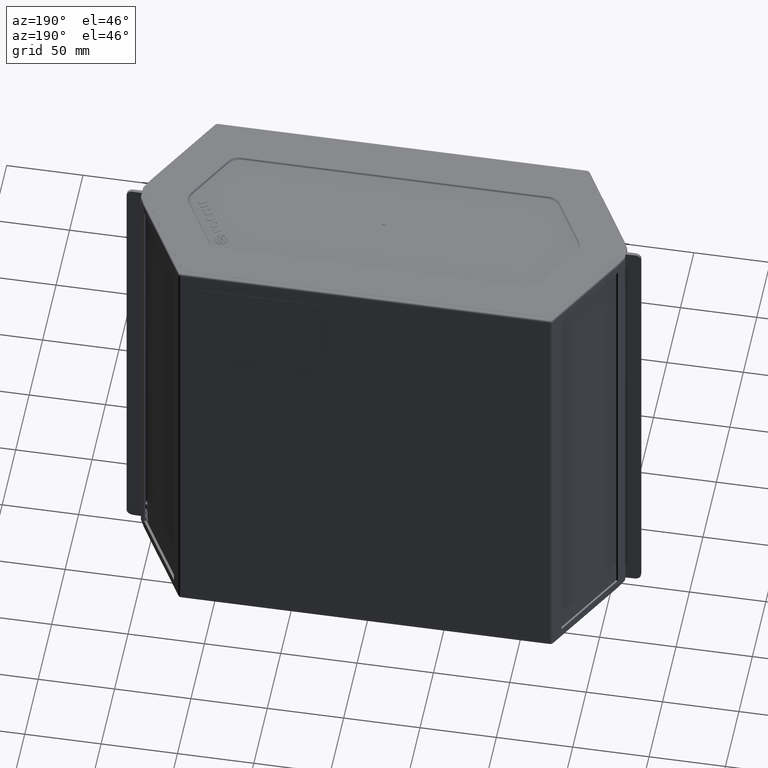
[diagram: clean part render]
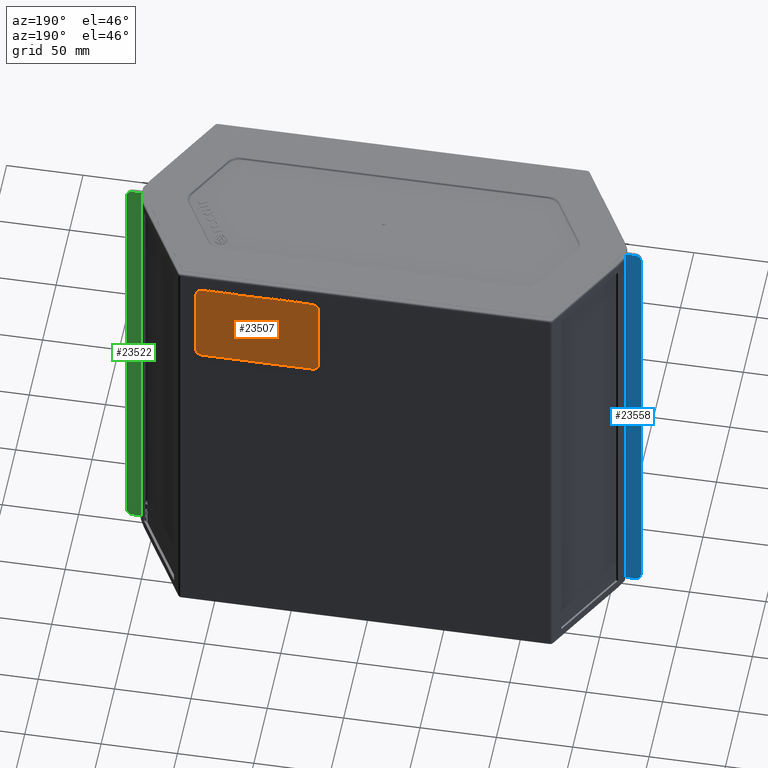
[diagram: same view with three faces highlighted in distinct colors, each labeled with its STEP entity id]
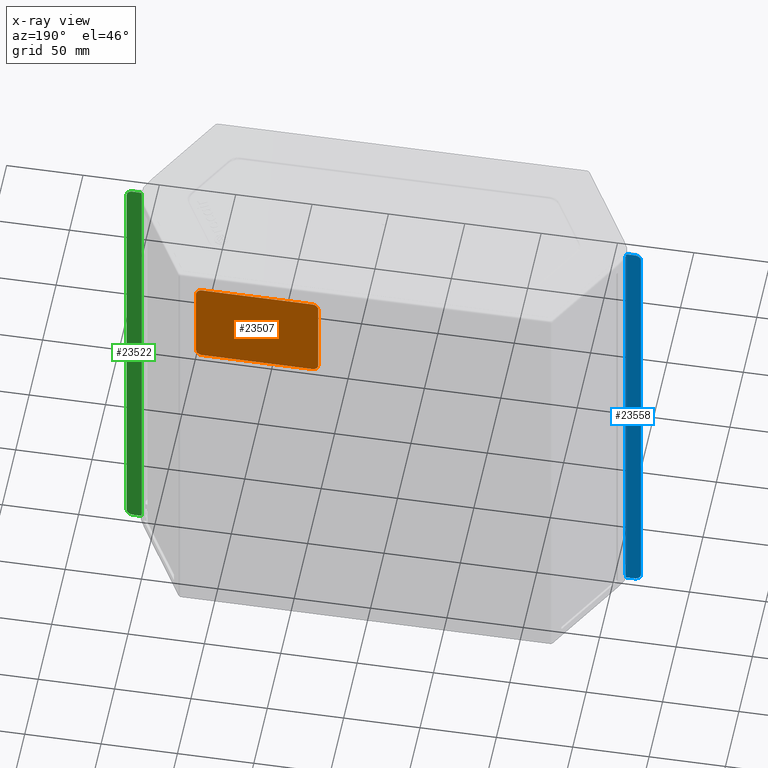
[diagram: x-ray of the same camera — body ghosted, the three highlighted faces saturated]
A machine part, auxiliary view with three faces highlighted in distinct colors.
The next image is the same camera in x-ray (body ghosted, the three faces saturated) — at least one of them is partly hidden behind the body in this view.
Their STEP definitions:

[orange] entity #23507 — the highlighted planar face has unit normal (0, -1, 0).
#1487=PLANE('',#24856);
#1930=FACE_OUTER_BOUND('',#3245,.T.);
#3245=EDGE_LOOP('',(#14829,#14830,#14831,#14832,#14833,#14834,#14835,#14836));
#4616=LINE('',#32215,#6512);
#4620=LINE('',#32227,#6516);
#4624=LINE('',#32239,#6520);
#4628=LINE('',#32249,#6524);
#6512=VECTOR('',#26674,10.);
#6516=VECTOR('',#26686,10.);
#6520=VECTOR('',#26698,10.);
#6524=VECTOR('',#26710,10.);
#8406=CIRCLE('',#24842,3.99999999999999);
#8408=CIRCLE('',#24846,3.99999999999995);
#8410=CIRCLE('',#24850,4.00000000000002);
#8412=CIRCLE('',#24854,3.99999999999995);
#9063=VERTEX_POINT('',#32206);
#9064=VERTEX_POINT('',#32208);
#9066=VERTEX_POINT('',#32214);
#9068=VERTEX_POINT('',#32220);
#9070=VERTEX_POINT('',#32226);
#9072=VERTEX_POINT('',#32232);
#9074=VERTEX_POINT('',#32238);
#9076=VERTEX_POINT('',#32244);
#11311=EDGE_CURVE('',#9064,#9063,#8406,.T.);
#11314=EDGE_CURVE('',#9066,#9064,#4616,.T.);
#11317=EDGE_CURVE('',#9068,#9066,#8408,.T.);
#11320=EDGE_CURVE('',#9070,#9068,#4620,.T.);
#11323=EDGE_CURVE('',#9072,#9070,#8410,.T.);
#11326=EDGE_CURVE('',#9074,#9072,#4624,.T.);
#11329=EDGE_CURVE('',#9076,#9074,#8412,.T.);
#11332=EDGE_CURVE('',#9063,#9076,#4628,.T.);
#14829=ORIENTED_EDGE('',*,*,#11332,.T.);
#14830=ORIENTED_EDGE('',*,*,#11329,.T.);
#14831=ORIENTED_EDGE('',*,*,#11326,.T.);
#14832=ORIENTED_EDGE('',*,*,#11323,.T.);
#14833=ORIENTED_EDGE('',*,*,#11320,.T.);
#14834=ORIENTED_EDGE('',*,*,#11317,.T.);
#14835=ORIENTED_EDGE('',*,*,#11314,.T.);
#14836=ORIENTED_EDGE('',*,*,#11311,.T.);
#23507=ADVANCED_FACE('',(#1930),#1487,.F.);
#24842=AXIS2_PLACEMENT_3D('',#32209,#26668,#26669);
#24846=AXIS2_PLACEMENT_3D('',#32221,#26680,#26681);
#24850=AXIS2_PLACEMENT_3D('',#32233,#26692,#26693);
#24854=AXIS2_PLACEMENT_3D('',#32245,#26704,#26705);
#24856=AXIS2_PLACEMENT_3D('',#32250,#26711,#26712);
#26668=DIRECTION('center_axis',(0.,1.,0.));
#26669=DIRECTION('ref_axis',(0.,0.,-1.));
#26674=DIRECTION('',(1.,0.,0.));
#26680=DIRECTION('center_axis',(0.,1.,0.));
#26681=DIRECTION('ref_axis',(1.,0.,0.));
#26686=DIRECTION('',(-3.41607084500048E-16,0.,1.));
#26692=DIRECTION('center_axis',(0.,1.,0.));
#26693=DIRECTION('ref_axis',(0.,0.,1.));
#26698=DIRECTION('',(-1.,0.,-4.93432455388958E-16));
#26704=DIRECTION('center_axis',(0.,1.,0.));
#26705=DIRECTION('ref_axis',(-1.,0.,0.));
#26710=DIRECTION('',(-6.83214169000096E-16,0.,-1.));
#26711=DIRECTION('center_axis',(0.,-1.,0.));
#26712=DIRECTION('ref_axis',(0.,0.,-1.));
#32206=CARTESIAN_POINT('',(110.894882233485,69.03,283.9));
#32208=CARTESIAN_POINT('',(106.894882233485,69.03,287.9));
#32209=CARTESIAN_POINT('Origin',(106.894882233485,69.03,283.9));
#32214=CARTESIAN_POINT('',(34.8948822334847,69.03,287.9));
#32215=CARTESIAN_POINT('',(106.894882233485,69.03,287.9));
#32220=CARTESIAN_POINT('',(30.8948822334847,69.03,283.9));
#32221=CARTESIAN_POINT('Origin',(34.8948822334847,69.03,283.9));
#32226=CARTESIAN_POINT('',(30.8948822334847,69.03,231.9));
#32227=CARTESIAN_POINT('',(30.8948822334847,69.03,283.9));
#32232=CARTESIAN_POINT('',(34.8948822334847,69.03,227.9));
#32233=CARTESIAN_POINT('Origin',(34.8948822334847,69.03,231.9));
#32238=CARTESIAN_POINT('',(106.894882233485,69.03,227.9));
#32239=CARTESIAN_POINT('',(34.8948822334847,69.03,227.9));
#32244=CARTESIAN_POINT('',(110.894882233485,69.03,231.9));
#32245=CARTESIAN_POINT('Origin',(106.894882233485,69.03,231.9));
#32249=CARTESIAN_POINT('',(110.894882233485,69.03,231.9));
#32250=CARTESIAN_POINT('Origin',(70.8948822334847,69.03,257.9));

[blue] entity #23558 — the highlighted planar face has unit normal (-0.0249, 0.9997, 0).
#1171=ELLIPSE('',#24926,4.0012448212626,4.);
#1173=ELLIPSE('',#24930,4.0012448212626,4.);
#1527=PLANE('',#24929);
#1981=FACE_OUTER_BOUND('',#3297,.T.);
#3297=EDGE_LOOP('',(#15105,#15106,#15107,#15108,#15109,#15110,#15111,#15112,
#15113,#15114));
#4737=LINE('',#32520,#6633);
#4740=LINE('',#32526,#6636);
#4741=LINE('',#32528,#6637);
#4742=LINE('',#32530,#6638);
#4743=LINE('',#32532,#6639);
#4744=LINE('',#32534,#6640);
#4745=LINE('',#32536,#6641);
#4746=LINE('',#32538,#6642);
#6633=VECTOR('',#26965,10.);
#6636=VECTOR('',#26970,10.);
#6637=VECTOR('',#26971,10.);
#6638=VECTOR('',#26972,10.);
#6639=VECTOR('',#26973,10.);
#6640=VECTOR('',#26974,10.);
#6641=VECTOR('',#26975,10.);
#6642=VECTOR('',#26976,10.);
#9161=VERTEX_POINT('',#32510);
#9162=VERTEX_POINT('',#32511);
#9165=VERTEX_POINT('',#32519);
#9167=VERTEX_POINT('',#32525);
#9168=VERTEX_POINT('',#32527);
#9169=VERTEX_POINT('',#32529);
#9170=VERTEX_POINT('',#32531);
#9171=VERTEX_POINT('',#32533);
#9172=VERTEX_POINT('',#32535);
#9173=VERTEX_POINT('',#32537);
#11459=EDGE_CURVE('',#9161,#9162,#1171,.T.);
#11463=EDGE_CURVE('',#9165,#9162,#4737,.T.);
#11466=EDGE_CURVE('',#9161,#9167,#4740,.T.);
#11467=EDGE_CURVE('',#9168,#9167,#4741,.T.);
#11468=EDGE_CURVE('',#9168,#9169,#4742,.T.);
#11469=EDGE_CURVE('',#9169,#9170,#4743,.T.);
#11470=EDGE_CURVE('',#9170,#9171,#4744,.T.);
#11471=EDGE_CURVE('',#9171,#9172,#4745,.T.);
#11472=EDGE_CURVE('',#9173,#9172,#4746,.T.);
#11473=EDGE_CURVE('',#9165,#9173,#1173,.T.);
#15105=ORIENTED_EDGE('',*,*,#11459,.F.);
#15106=ORIENTED_EDGE('',*,*,#11466,.T.);
#15107=ORIENTED_EDGE('',*,*,#11467,.F.);
#15108=ORIENTED_EDGE('',*,*,#11468,.T.);
#15109=ORIENTED_EDGE('',*,*,#11469,.T.);
#15110=ORIENTED_EDGE('',*,*,#11470,.T.);
#15111=ORIENTED_EDGE('',*,*,#11471,.T.);
#15112=ORIENTED_EDGE('',*,*,#11472,.F.);
#15113=ORIENTED_EDGE('',*,*,#11473,.F.);
#15114=ORIENTED_EDGE('',*,*,#11463,.T.);
#23558=ADVANCED_FACE('',(#1981),#1527,.T.);
#24926=AXIS2_PLACEMENT_3D('',#32512,#26957,#26958);
#24929=AXIS2_PLACEMENT_3D('',#32524,#26968,#26969);
#24930=AXIS2_PLACEMENT_3D('',#32539,#26977,#26978);
#26957=DIRECTION('center_axis',(0.0249423376123506,-0.999688891502967,0.));
#26958=DIRECTION('ref_axis',(-0.999688891502967,-0.0249423376123506,0.));
#26965=DIRECTION('',(0.,0.,1.));
#26968=DIRECTION('center_axis',(-0.0249423376123506,0.999688891502967,0.));
#26969=DIRECTION('ref_axis',(0.,0.,-1.));
#26970=DIRECTION('',(0.999688891502967,0.0249423376123488,3.05455539202156E-18));
#26971=DIRECTION('',(0.,0.,1.));
#26972=DIRECTION('',(0.999688891502967,0.0249423376123506,0.));
#26973=DIRECTION('',(0.,0.,-1.));
#26974=DIRECTION('',(-0.999688891502967,-0.0249423376123506,0.));
#26975=DIRECTION('',(0.,0.,-1.));
#26976=DIRECTION('',(0.999688891502967,0.0249423376123488,-3.05455539202156E-18));
#26977=DIRECTION('center_axis',(0.0249423376123506,-0.999688891502967,0.));
#26978=DIRECTION('ref_axis',(-0.999688891502967,-0.0249423376123506,-2.28912260116773E-15));
#32510=CARTESIAN_POINT('',(-164.380450658064,0.999800399201601,299.9));
#32511=CARTESIAN_POINT('',(-168.380450658064,0.900000000000019,295.9));
#32512=CARTESIAN_POINT('Origin',(-164.380450658064,0.99980039920162,295.9));
#32519=CARTESIAN_POINT('',(-168.380450658064,0.900000000000019,4.));
#32520=CARTESIAN_POINT('',(-168.380450658064,0.900000000000019,149.95));
#32524=CARTESIAN_POINT('Origin',(-158.360450658064,1.15000000000003,149.95));
#32525=CARTESIAN_POINT('',(-158.480450658064,1.14700598802395,299.9));
#32526=CARTESIAN_POINT('',(-165.9182109656,0.961433126059477,299.9));
#32527=CARTESIAN_POINT('',(-158.480450658064,1.14700598802395,297.95));
#32528=CARTESIAN_POINT('',(-158.480450658064,1.14700598802395,297.95));
#32529=CARTESIAN_POINT('',(-158.360450658064,1.15000000000003,297.95));
#32530=CARTESIAN_POINT('',(-168.380450658064,0.900000000000019,297.95));
#32531=CARTESIAN_POINT('',(-158.360450658064,1.15000000000003,1.95));
#32532=CARTESIAN_POINT('',(-158.360450658064,1.15000000000003,149.95));
#32533=CARTESIAN_POINT('',(-158.480450658064,1.14700598802395,1.94999999999997));
#32534=CARTESIAN_POINT('',(-168.380450658064,0.900000000000019,1.94999999999999));
#32535=CARTESIAN_POINT('',(-158.480450658064,1.14700598802395,0.));
#32536=CARTESIAN_POINT('',(-158.480450658064,1.14700598802395,1.94999999999997));
#32537=CARTESIAN_POINT('',(-164.380450658064,0.999800399201601,-4.69863582455153E-18));
#32538=CARTESIAN_POINT('',(-165.9182109656,0.961433126059477,0.));
#32539=CARTESIAN_POINT('Origin',(-164.380450658064,0.99980039920162,4.));

[green] entity #23522 — the highlighted planar face has unit normal (0.0249, 0.9997, 0).
#1167=ELLIPSE('',#24874,4.0012448212626,4.);
#1169=ELLIPSE('',#24878,4.0012448212626,4.);
#1499=PLANE('',#24877);
#1945=FACE_OUTER_BOUND('',#3261,.T.);
#3261=EDGE_LOOP('',(#14913,#14914,#14915,#14916,#14917,#14918,#14919,#14920,
#14921,#14922));
#4657=LINE('',#32324,#6553);
#4660=LINE('',#32330,#6556);
#4661=LINE('',#32332,#6557);
#4662=LINE('',#32334,#6558);
#4663=LINE('',#32336,#6559);
#4664=LINE('',#32338,#6560);
#4665=LINE('',#32340,#6561);
#4666=LINE('',#32342,#6562);
#6553=VECTOR('',#26781,10.);
#6556=VECTOR('',#26786,10.);
#6557=VECTOR('',#26787,10.);
#6558=VECTOR('',#26788,10.);
#6559=VECTOR('',#26789,10.);
#6560=VECTOR('',#26790,10.);
#6561=VECTOR('',#26791,10.);
#6562=VECTOR('',#26792,10.);
#9097=VERTEX_POINT('',#32314);
#9098=VERTEX_POINT('',#32315);
#9101=VERTEX_POINT('',#32323);
#9103=VERTEX_POINT('',#32329);
#9104=VERTEX_POINT('',#32331);
#9105=VERTEX_POINT('',#32333);
#9106=VERTEX_POINT('',#32335);
#9107=VERTEX_POINT('',#32337);
#9108=VERTEX_POINT('',#32339);
#9109=VERTEX_POINT('',#32341);
#11363=EDGE_CURVE('',#9097,#9098,#1167,.T.);
#11367=EDGE_CURVE('',#9101,#9098,#4657,.T.);
#11370=EDGE_CURVE('',#9097,#9103,#4660,.T.);
#11371=EDGE_CURVE('',#9104,#9103,#4661,.T.);
#11372=EDGE_CURVE('',#9104,#9105,#4662,.T.);
#11373=EDGE_CURVE('',#9106,#9105,#4663,.T.);
#11374=EDGE_CURVE('',#9106,#9107,#4664,.T.);
#11375=EDGE_CURVE('',#9107,#9108,#4665,.T.);
#11376=EDGE_CURVE('',#9109,#9108,#4666,.T.);
#11377=EDGE_CURVE('',#9101,#9109,#1169,.T.);
#14913=ORIENTED_EDGE('',*,*,#11363,.F.);
#14914=ORIENTED_EDGE('',*,*,#11370,.T.);
#14915=ORIENTED_EDGE('',*,*,#11371,.F.);
#14916=ORIENTED_EDGE('',*,*,#11372,.T.);
#14917=ORIENTED_EDGE('',*,*,#11373,.F.);
#14918=ORIENTED_EDGE('',*,*,#11374,.T.);
#14919=ORIENTED_EDGE('',*,*,#11375,.T.);
#14920=ORIENTED_EDGE('',*,*,#11376,.F.);
#14921=ORIENTED_EDGE('',*,*,#11377,.F.);
#14922=ORIENTED_EDGE('',*,*,#11367,.T.);
#23522=ADVANCED_FACE('',(#1945),#1499,.T.);
#24874=AXIS2_PLACEMENT_3D('',#32316,#26773,#26774);
#24877=AXIS2_PLACEMENT_3D('',#32328,#26784,#26785);
#24878=AXIS2_PLACEMENT_3D('',#32343,#26793,#26794);
#26773=DIRECTION('center_axis',(-0.024942337612349,-0.999688891502967,0.));
#26774=DIRECTION('ref_axis',(0.999688891502967,-0.024942337612349,6.58989839730103E-15));
#26781=DIRECTION('',(0.,0.,-1.));
#26784=DIRECTION('center_axis',(0.024942337612349,0.999688891502967,0.));
#26785=DIRECTION('ref_axis',(0.,0.,1.));
#26786=DIRECTION('',(-0.999688891502967,0.0249423376123488,-3.05455539202156E-18));
#26787=DIRECTION('',(0.,0.,-1.));
#26788=DIRECTION('',(-0.999688891502967,0.024942337612349,0.));
#26789=DIRECTION('',(0.,0.,-1.));
#26790=DIRECTION('',(0.999688891502967,-0.024942337612349,0.));
#26791=DIRECTION('',(0.,0.,1.));
#26792=DIRECTION('',(-0.999688891502967,0.0249423376123488,3.05455539202156E-18));
#26793=DIRECTION('center_axis',(-0.024942337612349,-0.999688891502967,0.));
#26794=DIRECTION('ref_axis',(0.999688891502967,-0.024942337612349,0.));
#32314=CARTESIAN_POINT('',(164.380450658064,0.999800399201602,-4.69863582455164E-18));
#32315=CARTESIAN_POINT('',(168.380450658064,0.900000000000007,4.));
#32316=CARTESIAN_POINT('Origin',(164.380450658064,0.999800399201602,4.));
#32323=CARTESIAN_POINT('',(168.380450658064,0.900000000000007,295.9));
#32324=CARTESIAN_POINT('',(168.380450658064,0.900000000000007,149.95));
#32328=CARTESIAN_POINT('Origin',(168.380450658064,0.900000000000007,149.95));
#32329=CARTESIAN_POINT('',(158.480450658064,1.14700598802395,0.));
#32330=CARTESIAN_POINT('',(165.9182109656,0.961433126059477,0.));
#32331=CARTESIAN_POINT('',(158.480450658064,1.14700598802395,1.94999999999997));
#32332=CARTESIAN_POINT('',(158.480450658064,1.14700598802395,1.94999999999997));
#32333=CARTESIAN_POINT('',(158.360450658064,1.15,1.95));
#32334=CARTESIAN_POINT('',(158.360450658064,1.15,1.94999999999999));
#32335=CARTESIAN_POINT('',(158.360450658064,1.15,297.95));
#32336=CARTESIAN_POINT('',(158.360450658064,1.15,149.95));
#32337=CARTESIAN_POINT('',(158.480450658064,1.14700598802395,297.95));
#32338=CARTESIAN_POINT('',(158.360450658064,1.15,297.95));
#32339=CARTESIAN_POINT('',(158.480450658064,1.14700598802395,299.9));
#32340=CARTESIAN_POINT('',(158.480450658064,1.14700598802395,297.95));
#32341=CARTESIAN_POINT('',(164.380450658064,0.999800399201601,299.9));
#32342=CARTESIAN_POINT('',(165.9182109656,0.961433126059477,299.9));
#32343=CARTESIAN_POINT('Origin',(164.380450658064,0.999800399201602,295.9));